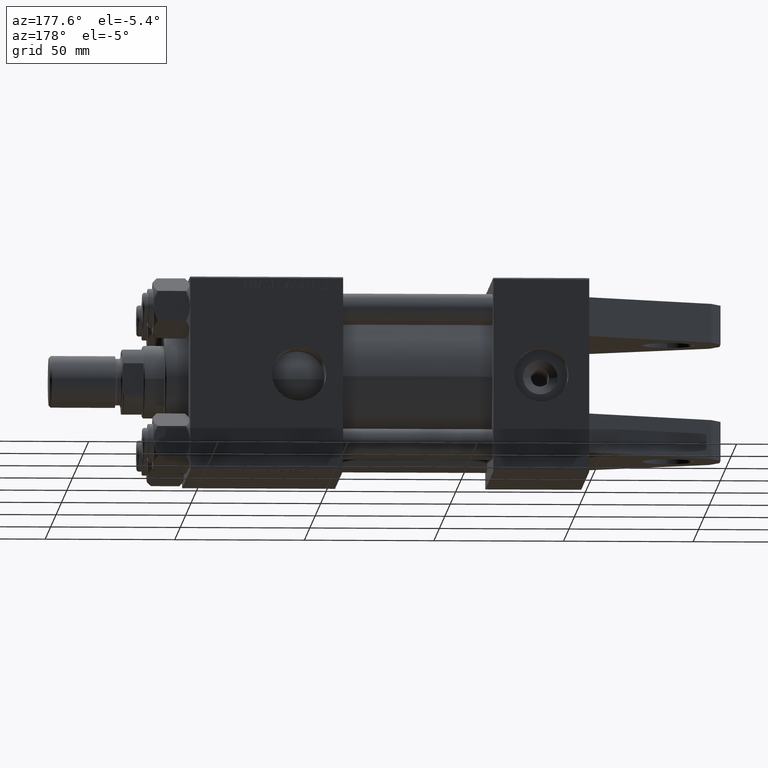
[diagram: clean part render]
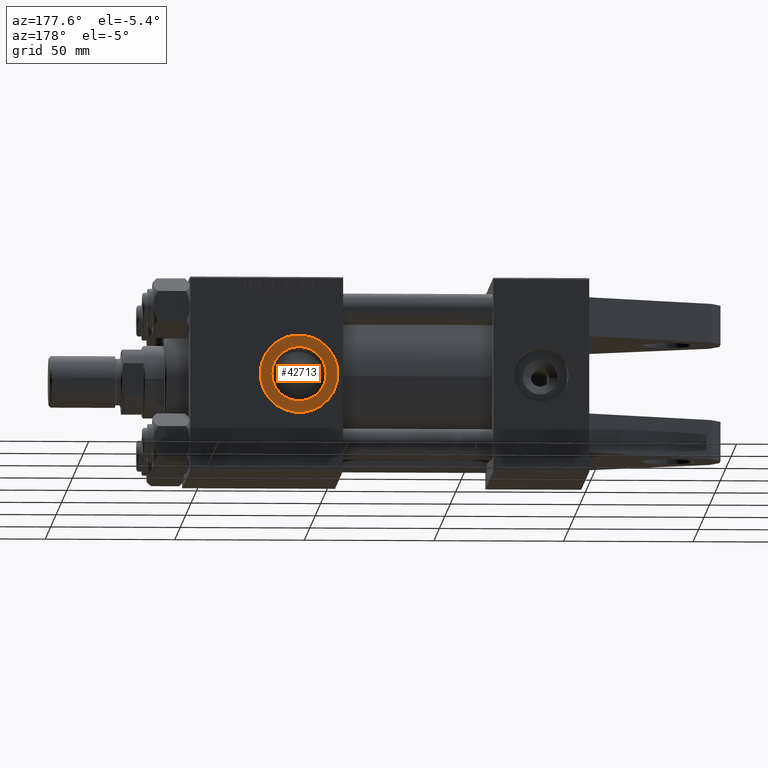
[diagram: same view with one face highlighted and labeled with its STEP entity id]
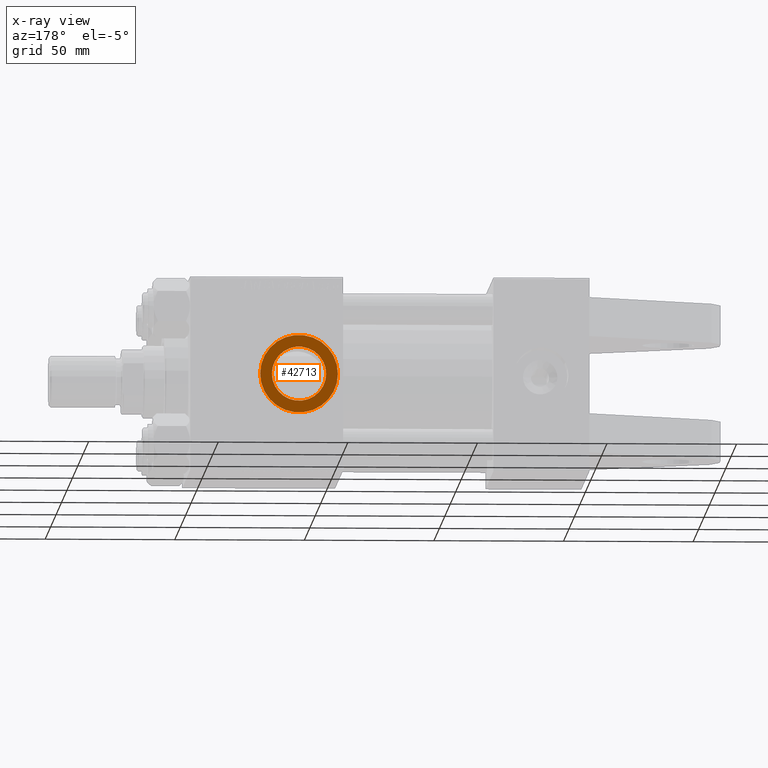
[diagram: x-ray of the same camera — body ghosted, the highlighted face saturated]
A machine part, auxiliary view. The second image highlights one B-rep face of the part: STEP entity #42713.
The next image is the same camera in x-ray: the body ghosted, the highlighted face saturated — about 0% of this face is hidden behind the body in this view.
In plain terms, the highlighted planar face has unit normal (0, 1, 0).
Its self-contained STEP definition (entity closure, byte-faithful):
#216 = CARTESIAN_POINT ( 'NONE',  ( 112.0000000000000000, -6.938893903907226011E-15, 37.29999999999998295 ) ) ;
#1724 = AXIS2_PLACEMENT_3D ( 'NONE', #36052, #19785, #43920 ) ;
#1777 = CARTESIAN_POINT ( 'NONE',  ( 112.0000000000000000, -6.938893903907226011E-15, 37.29999999999998295 ) ) ;
#4546 = VERTEX_POINT ( 'NONE', #23285 ) ;
#5108 = VERTEX_POINT ( 'NONE', #24140 ) ;
#6548 = EDGE_LOOP ( 'NONE', ( #17421, #17783 ) ) ;
#7950 = ORIENTED_EDGE ( 'NONE', *, *, #14808, .T. ) ;
#9222 = CARTESIAN_POINT ( 'NONE',  ( 122.4800000000000040, -6.938893903907226011E-15, 37.29999999999998295 ) ) ;
#9306 = DIRECTION ( 'NONE',  ( 0.000000000000000000, 0.000000000000000000, 1.000000000000000000 ) ) ;
#9981 = EDGE_CURVE ( 'NONE', #5108, #44629, #22414, .T. ) ;
#13050 = DIRECTION ( 'NONE',  ( 0.000000000000000000, 0.000000000000000000, 1.000000000000000000 ) ) ;
#13915 = VERTEX_POINT ( 'NONE', #18595 ) ;
#14808 = EDGE_CURVE ( 'NONE', #4546, #13915, #49397, .T. ) ;
#17175 = CARTESIAN_POINT ( 'NONE',  ( 112.0000000000000000, -6.938893903907226011E-15, 37.29999999999998295 ) ) ;
#17421 = ORIENTED_EDGE ( 'NONE', *, *, #40702, .F. ) ;
#17783 = ORIENTED_EDGE ( 'NONE', *, *, #9981, .F. ) ;
#18595 = CARTESIAN_POINT ( 'NONE',  ( 96.99999999999998579, -5.101923705186194844E-15, 37.29999999999998295 ) ) ;
#18966 = CIRCLE ( 'NONE', #39073, 15.00000000000000000 ) ;
#19785 = DIRECTION ( 'NONE',  ( 0.000000000000000000, 0.000000000000000000, 1.000000000000000000 ) ) ;
#21712 = FACE_BOUND ( 'NONE', #6548, .T. ) ;
#22414 = CIRCLE ( 'NONE', #48359, 10.48000000000000398 ) ;
#22713 = DIRECTION ( 'NONE',  ( 1.000000000000000000, 0.000000000000000000, 0.000000000000000000 ) ) ;
#22775 = AXIS2_PLACEMENT_3D ( 'NONE', #1777, #33789, #49767 ) ;
#23285 = CARTESIAN_POINT ( 'NONE',  ( 127.0000000000000000, -6.938893903907226011E-15, 37.29999999999998295 ) ) ;
#24140 = CARTESIAN_POINT ( 'NONE',  ( 101.5199999999999960, -5.655464058400800522E-15, 37.29999999999998295 ) ) ;
#25907 = FACE_OUTER_BOUND ( 'NONE', #33898, .T. ) ;
#26781 = EDGE_CURVE ( 'NONE', #13915, #4546, #18966, .T. ) ;
#28551 = CIRCLE ( 'NONE', #1724, 10.48000000000000398 ) ;
#31105 = CARTESIAN_POINT ( 'NONE',  ( 112.0000000000000000, -6.938893903907226011E-15, 37.29999999999998295 ) ) ;
#31626 = DIRECTION ( 'NONE',  ( 0.000000000000000000, 0.000000000000000000, 1.000000000000000000 ) ) ;
#33789 = DIRECTION ( 'NONE',  ( 0.000000000000000000, 0.000000000000000000, 1.000000000000000000 ) ) ;
#33898 = EDGE_LOOP ( 'NONE', ( #7950, #41577 ) ) ;
#36052 = CARTESIAN_POINT ( 'NONE',  ( 112.0000000000000000, -6.938893903907226011E-15, 37.29999999999998295 ) ) ;
#37724 = PLANE ( 'NONE',  #22775 ) ;
#38152 = DIRECTION ( 'NONE',  ( 1.000000000000000000, 0.000000000000000000, 0.000000000000000000 ) ) ;
#39073 = AXIS2_PLACEMENT_3D ( 'NONE', #17175, #9306, #38152 ) ;
#40098 = DIRECTION ( 'NONE',  ( 1.000000000000000000, 0.000000000000000000, 0.000000000000000000 ) ) ;
#40702 = EDGE_CURVE ( 'NONE', #44629, #5108, #28551, .T. ) ;
#40909 = AXIS2_PLACEMENT_3D ( 'NONE', #216, #13050, #40098 ) ;
#41577 = ORIENTED_EDGE ( 'NONE', *, *, #26781, .T. ) ;
#42713 = ADVANCED_FACE ( 'NONE', ( #21712, #25907 ), #37724, .T. ) ;
#43920 = DIRECTION ( 'NONE',  ( 1.000000000000000000, 0.000000000000000000, 0.000000000000000000 ) ) ;
#44629 = VERTEX_POINT ( 'NONE', #9222 ) ;
#48359 = AXIS2_PLACEMENT_3D ( 'NONE', #31105, #31626, #22713 ) ;
#49397 = CIRCLE ( 'NONE', #40909, 15.00000000000000000 ) ;
#49767 = DIRECTION ( 'NONE',  ( 1.000000000000000000, 0.000000000000000000, -0.000000000000000000 ) ) ;